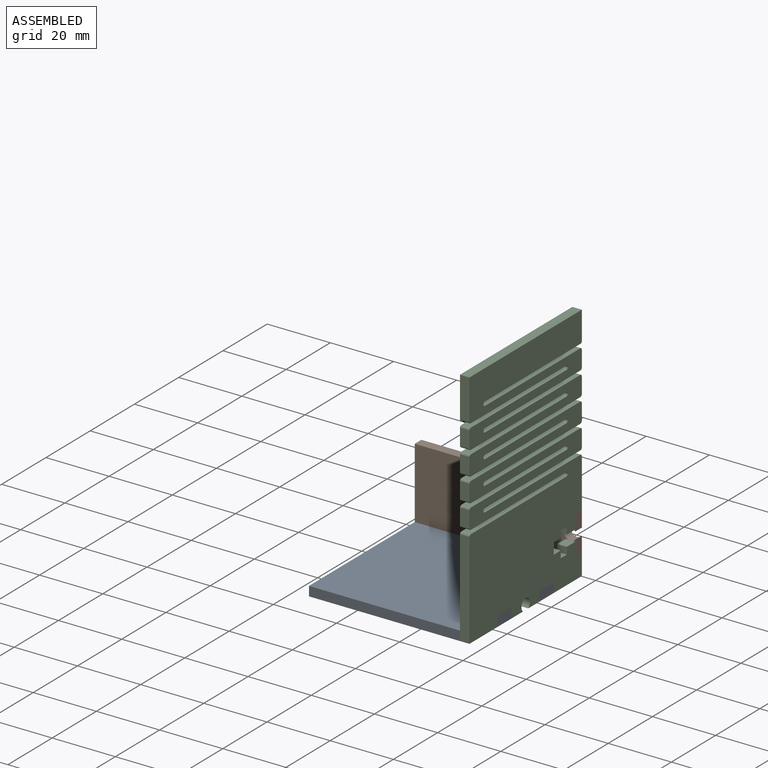
[diagram: assembled view]
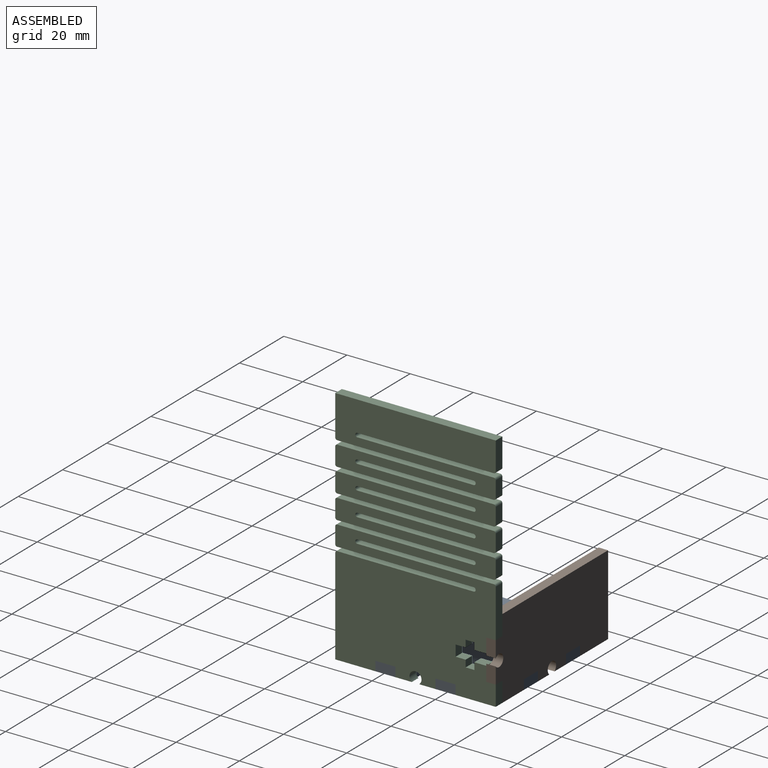
[diagram: assembled view, second angle]
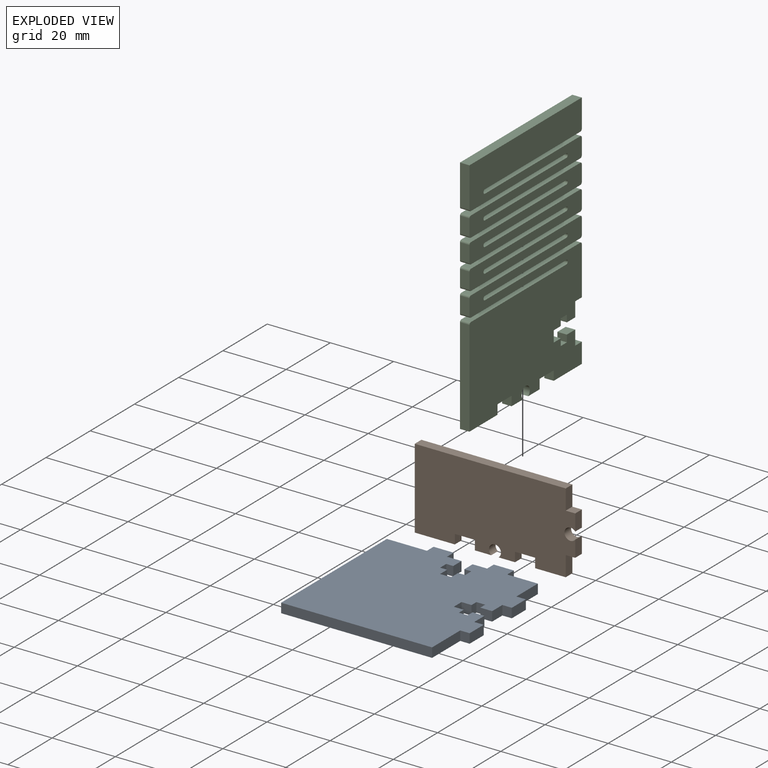
[diagram: exploded view]
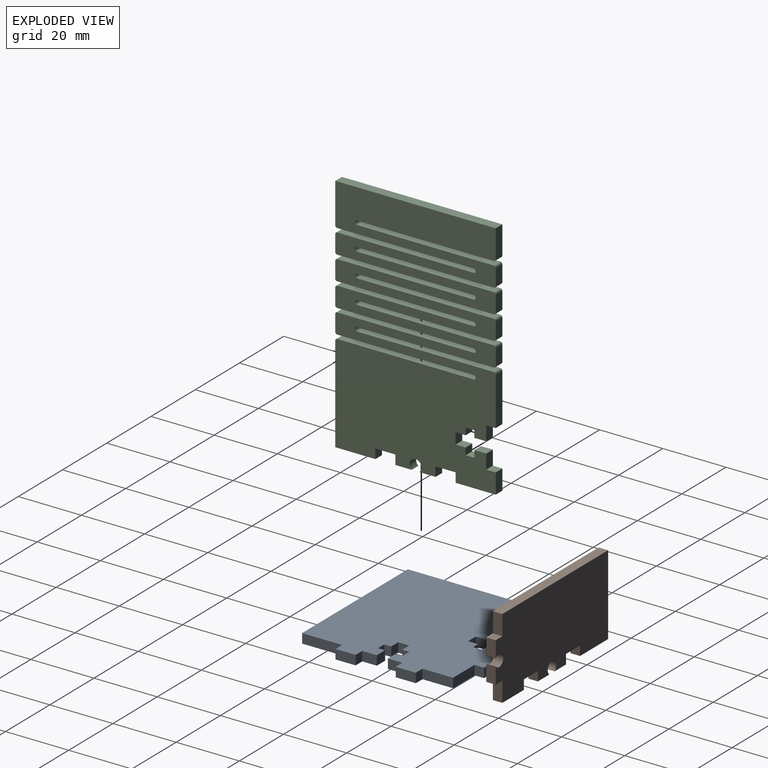
[diagram: exploded view, second angle]
ASSEMBLY  parts=3 mates=7
PART A: 46 faces, bbox 50.8x3x50.8 mm
  f0: plane 3x3mm, normal (0,0,1), area 9mm2, adj f1,f43,f44,f45
  f1: plane 4.6x3mm, normal (1,0,0), area 13.8mm2, adj f0,f2,f44,f45
  f2: plane 3.75x3mm, normal (0,0,1), area 11.2mm2, adj f1,f3,f44,f45
  f3: plane 3x2.21mm, normal (-1,0,0), area 6.6mm2, adj f2,f4,f44,f45
  f4: plane 3x2.78mm, normal (0,0,1), area 8.3mm2, adj f3,f5,f44,f45
  f5: plane 3x2.21mm, normal (1,0,0), area 6.6mm2, adj f4,f6,f44,f45
  f6: plane 3.18x3mm, normal (0,0,1), area 9.5mm2, adj f5,f7,f44,f45
  f7: plane 3.51x3mm, normal (1,0,0), area 10.5mm2, adj f6,f8,f44,f45
  f8: plane 3.18x3mm, normal (0,0,-1), area 9.5mm2, adj f7,f9,f44,f45
  f9: plane 3x2.21mm, normal (1,0,0), area 6.6mm2, adj f8,f10,f44,f45
  f10: plane 3x2.78mm, normal (0,0,-1), area 8.3mm2, adj f9,f11,f44,f45
  f11: plane 3x2.21mm, normal (-1,0,0), area 6.6mm2, adj f10,f12,f44,f45
  f12: plane 3.75x3mm, normal (0,0,-1), area 11.2mm2, adj f11,f13,f44,f45
  f13: plane 4.6x3mm, normal (1,0,0), area 13.8mm2, adj f12,f14,f44,f45
  f14: plane 3x3mm, normal (0,0,-1), area 9mm2, adj f13,f15,f44,f45
  f15: plane 6.35x3mm, normal (1,0,0), area 19mm2, adj f14,f16,f44,f45
  f16: plane 3x3mm, normal (0,0,1), area 9mm2, adj f15,f17,f44,f45
  f17: plane 12.7x3mm, normal (1,0,0), area 38.1mm2, adj f16,f18,f44,f45
  f18: plane 47.8x3mm, normal (0,0,1), area 143.4mm2, adj f17,f19,f44,f45
  f19: plane 47.8x3mm, normal (-1,0,0), area 143.4mm2, adj f18,f20,f44,f45
  f20: plane 12.7x3mm, normal (0,0,-1), area 38.1mm2, adj f19,f21,f44,f45
  f21: plane 3x3mm, normal (-1,0,0), area 9mm2, adj f20,f22,f44,f45
  f22: plane 6.35x3mm, normal (0,0,-1), area 19mm2, adj f21,f23,f44,f45
  f23: plane 3x3mm, normal (1,0,0), area 9mm2, adj f22,f24,f44,f45
  f24: plane 4.6x3mm, normal (0,0,-1), area 13.8mm2, adj f23,f25,f44,f45
  f25: plane 3.75x3mm, normal (1,0,0), area 11.2mm2, adj f24,f26,f44,f45
  f26: plane 3x2.22mm, normal (0,0,1), area 6.6mm2, adj f25,f27,f44,f45
  f27: plane 3x2.78mm, normal (1,0,0), area 8.3mm2, adj f26,f28,f44,f45
  f28: plane 3x2.22mm, normal (0,0,-1), area 6.6mm2, adj f27,f29,f44,f45
  f29: plane 3.18x3mm, normal (1,0,0), area 9.5mm2, adj f28,f30,f44,f45
  f30: plane 3.51x3mm, normal (0,0,-1), area 10.5mm2, adj f29,f31,f44,f45
  f31: plane 3.18x3mm, normal (-1,0,0), area 9.5mm2, adj f30,f32,f44,f45
  f32: plane 3x2.22mm, normal (0,0,-1), area 6.6mm2, adj f31,f33,f44,f45
  f33: plane 3x2.78mm, normal (-1,0,0), area 8.3mm2, adj f32,f34,f44,f45
  f34: plane 3x2.22mm, normal (0,0,1), area 6.6mm2, adj f33,f35,f44,f45
  f35: plane 3.75x3mm, normal (-1,0,0), area 11.2mm2, adj f34,f36,f44,f45
  f36: plane 4.6x3mm, normal (0,0,-1), area 13.8mm2, adj f35,f37,f44,f45
  f37: plane 3x3mm, normal (-1,0,0), area 9mm2, adj f36,f38,f44,f45
  f38: plane 6.35x3mm, normal (0,0,-1), area 19mm2, adj f37,f39,f44,f45
  f39: plane 3x3mm, normal (1,0,0), area 9mm2, adj f38,f40,f44,f45
  f40: plane 9.7x3mm, normal (0,0,-1), area 29.1mm2, adj f39,f41,f44,f45
  f41: plane 9.7x3mm, normal (1,0,0), area 29.1mm2, adj f40,f42,f44,f45
  f42: plane 3x3mm, normal (0,0,-1), area 9mm2, adj f41,f43,f44,f45
  f43: plane 6.35x3mm, normal (1,0,0), area 19mm2, adj f0,f42,f44,f45
  f44: plane 50.8x50.8mm, normal (0,-1,0), area 2268.4mm2, adj f0,f1,f2,f3,f4,f5,f6,f7
  f45: plane 50.8x50.8mm, normal (0,1,0), area 2268.4mm2, adj f0,f1,f2,f3,f4,f5,f6,f7
PART B: 22 faces, bbox 50.8x3x25.4 mm
  f0: plane 50.8x25.4mm, normal (0,-1,0), area 1192.7mm2, adj f1,f2,f3,f4,f5,f6,f7,f8
  f1: plane 5.19x3mm, normal (1,0,0), area 15.6mm2, adj f0,f10,f19,f21
  f2: plane 5.19x3mm, normal (1,0,0), area 15.6mm2, adj f0,f9,f19,f21
  f3: plane 5.19x3mm, normal (0,0,-1), area 15.6mm2, adj f0,f17,f19,f20
  f4: plane 5.19x3mm, normal (0,0,-1), area 15.6mm2, adj f0,f18,f19,f20
  f5: plane 6.35x3mm, normal (0,0,-1), area 19mm2, adj f0,f6,f18,f19
  f6: plane 3x3mm, normal (-1,0,0), area 9mm2, adj f0,f5,f7,f19
  f7: plane 9.7x3mm, normal (0,0,-1), area 29.1mm2, adj f0,f6,f8,f19
  f8: plane 6.35x3mm, normal (1,0,0), area 19mm2, adj f0,f7,f9,f19
  f9: plane 3x3mm, normal (0,0,-1), area 9mm2, adj f0,f2,f8,f19
  f10: plane 3x3mm, normal (0,0,1), area 9mm2, adj f0,f1,f11,f19
  f11: plane 6.35x3mm, normal (1,0,0), area 19mm2, adj f0,f10,f12,f19
  f12: plane 47.8x3mm, normal (0,0,1), area 143.4mm2, adj f0,f11,f13,f19
  f13: plane 25.4x3mm, normal (-1,0,0), area 76.2mm2, adj f0,f12,f14,f19
  f14: plane 12.7x3mm, normal (0,0,-1), area 38.1mm2, adj f0,f13,f15,f19
  f15: plane 3x3mm, normal (1,0,0), area 9mm2, adj f0,f14,f16,f19
  f16: plane 6.35x3mm, normal (0,0,-1), area 19mm2, adj f0,f15,f17,f19
  f17: plane 3x3mm, normal (-1,0,0), area 9mm2, adj f0,f3,f16,f19
  f18: plane 3x3mm, normal (1,0,0), area 9mm2, adj f0,f4,f5,f19
  f19: plane 50.8x25.4mm, normal (0,1,0), area 1192.7mm2, adj f1,f2,f3,f4,f5,f6,f7,f8
  f20: cylinder r=1.9mm len=3.8mm, axis (0,-1,0), area 28.3mm2, adj f0,f3,f4,f19
  f21: cylinder r=1.9mm len=3.8mm, axis (0,-1,0), area 28.3mm2, adj f0,f1,f2,f19
PART C: 92 faces, bbox 76.2x3x50.8 mm
  f0: plane 5.08x3mm, normal (0,0,-1), area 15.2mm2, adj f10,f11,f73,f78
  f1: plane 5.08x3mm, normal (0,0,-1), area 15.2mm2, adj f10,f11,f79,f84
  f2: plane 5.08x3mm, normal (0,0,-1), area 15.2mm2, adj f10,f11,f85,f88
  f3: plane 8.89x3mm, normal (0,0,-1), area 26.7mm2, adj f10,f11,f26,f66
  f4: plane 5.08x3mm, normal (0,0,-1), area 15.2mm2, adj f10,f11,f67,f72
  f5: plane 5.08x3mm, normal (0,0,1), area 15.2mm2, adj f10,f11,f81,f91
  f6: plane 12.7x3mm, normal (0,0,1), area 38.1mm2, adj f10,f11,f26,f64
  f7: plane 5.08x3mm, normal (0,0,1), area 15.2mm2, adj f10,f11,f75,f82
  f8: plane 5.08x3mm, normal (0,0,1), area 15.2mm2, adj f10,f11,f63,f70
  f9: plane 5.08x3mm, normal (0,0,1), area 15.2mm2, adj f10,f11,f69,f76
  f10: plane 76.2x50.8mm, normal (0,-1,0), area 3173.3mm2, adj f0,f1,f2,f3,f4,f5,f6,f7
  f11: plane 76.2x50.8mm, normal (0,1,0), area 3173.3mm2, adj f0,f1,f2,f3,f4,f5,f6,f7
  f12: plane 5.19x3mm, normal (-1,0,0), area 15.6mm2, adj f10,f11,f31,f41
  f13: plane 5.19x3mm, normal (-1,0,0), area 15.6mm2, adj f10,f11,f32,f41
  f14: plane 3x2.77mm, normal (1,0,0), area 8.3mm2, adj f10,f11,f15,f40
  f15: plane 3x2.21mm, normal (0,0,-1), area 6.6mm2, adj f10,f11,f14,f16
  f16: plane 3.18x3mm, normal (1,0,0), area 9.5mm2, adj f10,f11,f15,f17
  f17: plane 3.51x3mm, normal (0,0,-1), area 10.5mm2, adj f10,f11,f16,f18
  f18: plane 3.18x3mm, normal (-1,0,0), area 9.5mm2, adj f10,f11,f17,f19
  f19: plane 3x2.21mm, normal (0,0,-1), area 6.6mm2, adj f10,f11,f18,f20
  f20: plane 3x2.77mm, normal (-1,0,0), area 8.3mm2, adj f10,f11,f19,f21
  f21: plane 3x2.21mm, normal (0,0,1), area 6.6mm2, adj f10,f11,f20,f22
  f22: plane 3.76x3mm, normal (-1,0,0), area 11.3mm2, adj f10,f11,f21,f23
  f23: plane 4.6x3mm, normal (0,0,-1), area 13.8mm2, adj f10,f11,f22,f24
  f24: plane 3x3mm, normal (-1,0,0), area 9mm2, adj f10,f11,f23,f25
  f25: plane 15.24x3mm, normal (0,0,-1), area 45.7mm2, adj f10,f11,f24,f87
  f26: plane 50.8x3mm, normal (1,0,0), area 152.4mm2, adj f3,f6,f10,f11
  f27: plane 30.48x3mm, normal (0,0,1), area 91.4mm2, adj f10,f11,f28,f90
  f28: plane 12.7x3mm, normal (-1,0,0), area 38.1mm2, adj f10,f11,f27,f29
  f29: plane 3x3mm, normal (0,0,-1), area 9mm2, adj f10,f11,f28,f30
  f30: plane 6.35x3mm, normal (-1,0,0), area 19mm2, adj f10,f11,f29,f31
  f31: plane 3x3mm, normal (0,0,1), area 9mm2, adj f10,f11,f12,f30
  f32: plane 3x3mm, normal (0,0,-1), area 9mm2, adj f10,f11,f13,f33
  f33: plane 6.35x3mm, normal (-1,0,0), area 19mm2, adj f10,f11,f32,f34
  f34: plane 3x3mm, normal (0,0,1), area 9mm2, adj f10,f11,f33,f35
  f35: plane 12.7x3mm, normal (-1,0,0), area 38.1mm2, adj f10,f11,f34,f36
  f36: plane 6.35x3mm, normal (0,0,-1), area 19mm2, adj f10,f11,f35,f37
  f37: plane 3x3mm, normal (1,0,0), area 9mm2, adj f10,f11,f36,f38
  f38: plane 4.6x3mm, normal (0,0,-1), area 13.8mm2, adj f10,f11,f37,f39
  f39: plane 3.76x3mm, normal (1,0,0), area 11.3mm2, adj f10,f11,f38,f40
  f40: plane 3x2.21mm, normal (0,0,1), area 6.6mm2, adj f10,f11,f14,f39
  f41: cylinder r=1.9mm len=3.8mm, axis (0,-1,0), area 28.3mm2, adj f10,f11,f12,f13
  f42: plane 43.18x3mm, normal (-1,0,0), area 129.5mm2, adj f10,f11,f74,f76
  f43: plane 43.18x3mm, normal (1,0,0), area 129.5mm2, adj f10,f11,f74,f75
  f44: plane 43.18x3mm, normal (1,0,0), area 129.5mm2, adj f10,f11,f71,f73
  f45: plane 43.18x3mm, normal (-1,0,0), area 129.5mm2, adj f10,f11,f71,f72
  f46: plane 43.18x3mm, normal (-1,0,0), area 129.5mm2, adj f10,f11,f68,f70
  f47: plane 43.18x3mm, normal (1,0,0), area 129.5mm2, adj f10,f11,f68,f69
  f48: plane 43.18x3mm, normal (1,0,0), area 129.5mm2, adj f10,f11,f65,f67
  f49: plane 43.18x3mm, normal (-1,0,0), area 129.5mm2, adj f10,f11,f65,f66
  f50: plane 43.18x3mm, normal (-1,0,0), area 129.5mm2, adj f10,f11,f86,f88
  f51: plane 43.18x3mm, normal (1,0,0), area 129.5mm2, adj f10,f11,f86,f87
  f52: plane 43.18x3mm, normal (1,0,0), area 129.5mm2, adj f10,f11,f83,f85
  f53: plane 43.18x3mm, normal (-1,0,0), area 129.5mm2, adj f10,f11,f83,f84
  f54: plane 43.18x3mm, normal (-1,0,0), area 129.5mm2, adj f10,f11,f80,f82
  f55: plane 43.18x3mm, normal (1,0,0), area 129.5mm2, adj f10,f11,f80,f81
  f56: plane 43.18x3mm, normal (1,0,0), area 129.5mm2, adj f10,f11,f77,f79
  f57: plane 43.18x3mm, normal (-1,0,0), area 129.5mm2, adj f10,f11,f77,f78
  f58: plane 43.18x3mm, normal (-1,0,0), area 129.5mm2, adj f10,f11,f62,f64
  f59: plane 43.18x3mm, normal (1,0,0), area 129.5mm2, adj f10,f11,f62,f63
  f60: plane 43.18x3mm, normal (-1,0,0), area 129.5mm2, adj f10,f11,f89,f91
  f61: plane 43.18x3mm, normal (1,0,0), area 129.5mm2, adj f10,f11,f89,f90
  f62: cylinder r=0.64mm len=3mm, axis (0,1,0), area 6mm2, adj f10,f11,f58,f59
  f63: cylinder r=0.64mm len=3mm, axis (0,1,0), area 3mm2, adj f8,f10,f11,f59
  f64: cylinder r=0.64mm len=3mm, axis (0,-1,0), area 3mm2, adj f6,f10,f11,f58
  f65: cylinder r=0.64mm len=3mm, axis (0,-1,0), area 6mm2, adj f10,f11,f48,f49
  f66: cylinder r=0.64mm len=3mm, axis (0,1,0), area 3mm2, adj f3,f10,f11,f49
  f67: cylinder r=0.64mm len=3mm, axis (0,-1,0), area 3mm2, adj f4,f10,f11,f48
  f68: cylinder r=0.64mm len=3mm, axis (0,1,0), area 6mm2, adj f10,f11,f46,f47
  f69: cylinder r=0.64mm len=3mm, axis (0,1,0), area 3mm2, adj f9,f10,f11,f47
  f70: cylinder r=0.64mm len=3mm, axis (0,-1,0), area 3mm2, adj f8,f10,f11,f46
  f71: cylinder r=0.64mm len=3mm, axis (0,-1,0), area 6mm2, adj f10,f11,f44,f45
  f72: cylinder r=0.64mm len=3mm, axis (0,1,0), area 3mm2, adj f4,f10,f11,f45
  f73: cylinder r=0.64mm len=3mm, axis (0,-1,0), area 3mm2, adj f0,f10,f11,f44
  f74: cylinder r=0.64mm len=3mm, axis (0,1,0), area 6mm2, adj f10,f11,f42,f43
  f75: cylinder r=0.64mm len=3mm, axis (0,1,0), area 3mm2, adj f7,f10,f11,f43
  f76: cylinder r=0.64mm len=3mm, axis (0,-1,0), area 3mm2, adj f9,f10,f11,f42
  f77: cylinder r=0.64mm len=3mm, axis (0,-1,0), area 6mm2, adj f10,f11,f56,f57
  f78: cylinder r=0.64mm len=3mm, axis (0,1,0), area 3mm2, adj f0,f10,f11,f57
  f79: cylinder r=0.64mm len=3mm, axis (0,-1,0), area 3mm2, adj f1,f10,f11,f56
  f80: cylinder r=0.64mm len=3mm, axis (0,1,0), area 6mm2, adj f10,f11,f54,f55
  f81: cylinder r=0.64mm len=3mm, axis (0,1,0), area 3mm2, adj f5,f10,f11,f55
  f82: cylinder r=0.64mm len=3mm, axis (0,-1,0), area 3mm2, adj f7,f10,f11,f54
  f83: cylinder r=0.64mm len=3mm, axis (0,-1,0), area 6mm2, adj f10,f11,f52,f53
  f84: cylinder r=0.64mm len=3mm, axis (0,1,0), area 3mm2, adj f1,f10,f11,f53
  f85: cylinder r=0.64mm len=3mm, axis (0,-1,0), area 3mm2, adj f2,f10,f11,f52
  f86: cylinder r=0.64mm len=3mm, axis (0,-1,0), area 6mm2, adj f10,f11,f50,f51
  f87: cylinder r=0.64mm len=3mm, axis (0,-1,0), area 3mm2, adj f10,f11,f25,f51
  f88: cylinder r=0.64mm len=3mm, axis (0,1,0), area 3mm2, adj f2,f10,f11,f50
  f89: cylinder r=0.64mm len=3mm, axis (0,1,0), area 6mm2, adj f10,f11,f60,f61
  f90: cylinder r=0.64mm len=3mm, axis (0,1,0), area 3mm2, adj f10,f11,f27,f61
  f91: cylinder r=0.64mm len=3mm, axis (0,-1,0), area 3mm2, adj f5,f10,f11,f60
PLACE A rot(axis=(1,0,0),90deg) t=(92.07,151.99,-18.49)mm
PLACE B t=(92.07,177.39,-8.79)mm
PLACE C rot(axis=(0.58,-0.58,0.58),120deg) t=(114.47,151.99,16.61)mm
MATE planar A.f44 <-> B.f14  axis (0,0,-1) through (104.77,174.39,-21.49)mm
MATE planar B.f10 <-> C.f24  axis (0,0,1) through (115.97,175.89,-2.44)mm
MATE planar A.f18 <-> C.f27  axis (0,-1,0) through (90.57,126.59,-19.99)mm
MATE planar B.f0 <-> A.f36  axis (0,-1,0) through (91.09,174.39,-8.33)mm
MATE planar A.f23 <-> B.f17  axis (1,0,0) through (85.72,177.39,-19.99)mm
MATE planar B.f1 <-> C.f10  axis (1,0,0) through (117.47,175.89,-5.03)mm
MATE planar C.f32 <-> A.f0  axis (0,1,0) through (115.97,158.34,-19.99)mm
